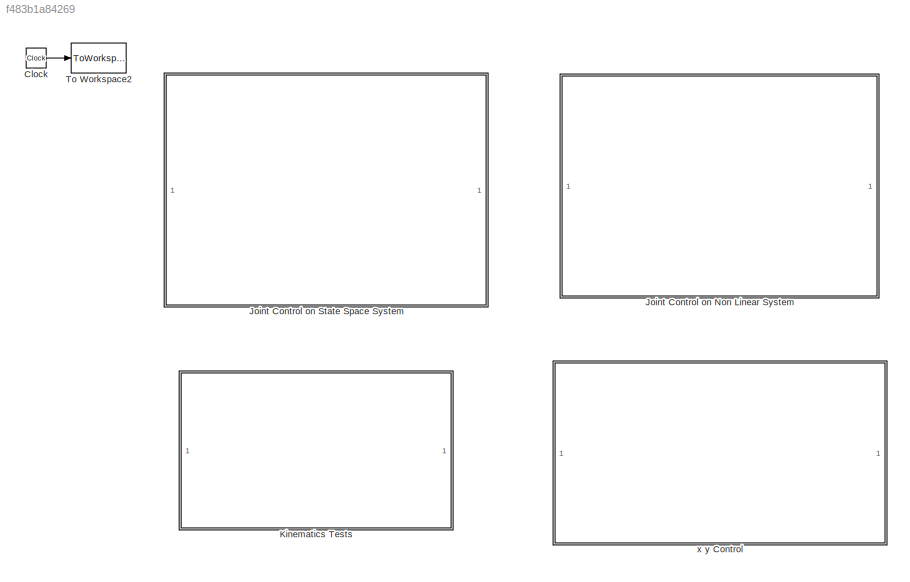
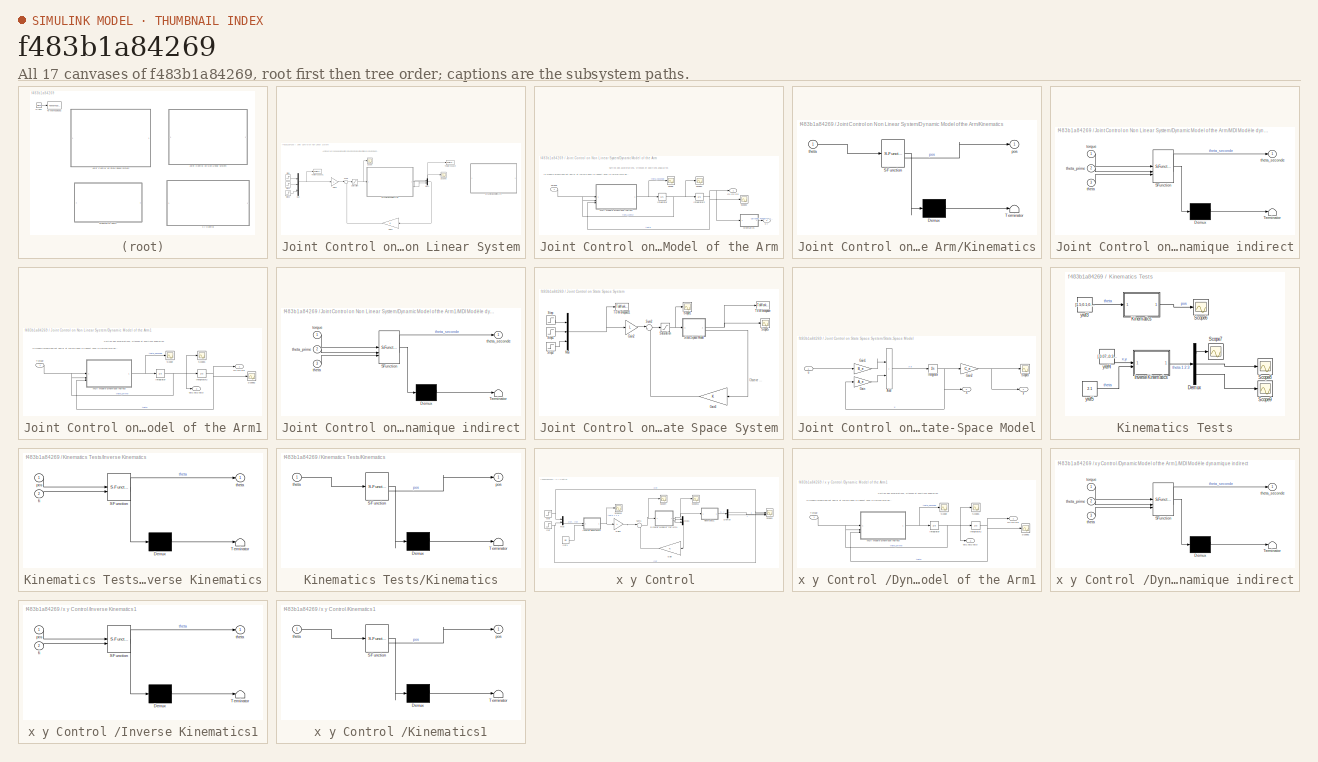
[diagram: thumbnail index - all 17 canvases of the model, root first then tree order]
MODEL slx_f483b1a84269
KIND model
CONFIG AbsTol = auto
CONFIG EnableMultiTasking = off
CONFIG FixedStep = 1e-5
CONFIG MaxStep = auto
CONFIG MinStep = auto
CONFIG RelTol = 1e-3
CONFIG SampleTimeConstraint = Unconstrained
CONFIG SolverName = VariableStepAuto
CONFIG StartTime = 0.0
CONFIG StopTime = 10
BLOCK [Clock] Clock
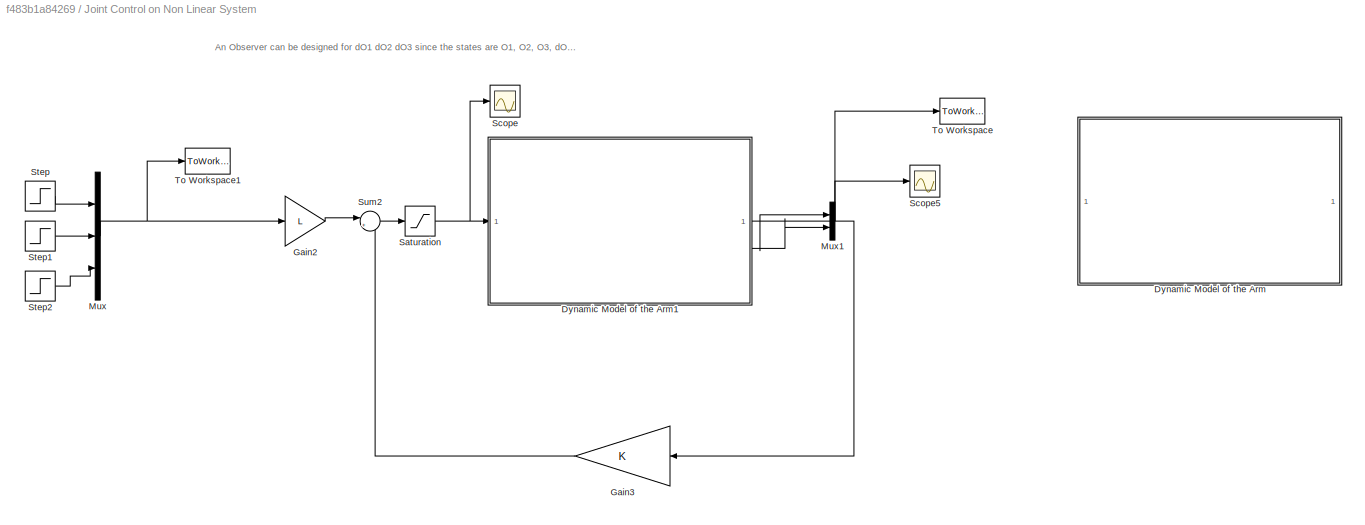
BLOCK [SubSystem] Joint Control on Non Linear System
BLOCK [SubSystem] Joint Control on Non Linear System/Dynamic Model of the Arm
  Commented = on
BLOCK [Integrator] Joint Control on Non Linear System/Dynamic Model of the Arm/Integrator
  InitialCondition = zeros(3,1)
BLOCK [Integrator] Joint Control on Non Linear System/Dynamic Model of the Arm/Integrator2
  InitialCondition = zeros(3,1)
BLOCK [SubSystem] Joint Control on Non Linear System/Dynamic Model of the Arm/Kinematics
  ErrorFcn = Stateflow.Translate.translate
  LibrarySourceBlock = simulink/User-Defined\nFunctions/MATLAB Function
  PermitHierarchicalResolution = ExplicitOnly
  SFBlockType = MATLAB Function
  TreatAsAtomicUnit = on
BLOCK [Demux] Joint Control on Non Linear System/Dynamic Model of the Arm/Kinematics/ Demux 
  Outputs = 1
BLOCK [S-Function] Joint Control on Non Linear System/Dynamic Model of the Arm/Kinematics/ SFunction 
  EnableBusSupport = on
  FunctionName = sf_sfun
  PortCounts = [1 2]
  SFcnIsStateOwnerBlock = off
  SFunctionDeploymentMode = off
  Tag = Stateflow S-Function 2
BLOCK [Terminator] Joint Control on Non Linear System/Dynamic Model of the Arm/Kinematics/ Terminator 
BLOCK [Outport] Joint Control on Non Linear System/Dynamic Model of the Arm/Kinematics/pos
BLOCK [Inport] Joint Control on Non Linear System/Dynamic Model of the Arm/Kinematics/theta
BLOCK [SubSystem] Joint Control on Non Linear System/Dynamic Model of the Arm/MDI Modèle dynamique indirect
  ErrorFcn = Stateflow.Translate.translate
  PermitHierarchicalResolution = ExplicitOnly
  SFBlockType = MATLAB Function
  TreatAsAtomicUnit = on
BLOCK [Demux] Joint Control on Non Linear System/Dynamic Model of the Arm/MDI Modèle dynamique indirect/ Demux 
  Outputs = 1
BLOCK [S-Function] Joint Control on Non Linear System/Dynamic Model of the Arm/MDI Modèle dynamique indirect/ SFunction 
  EnableBusSupport = on
  FunctionName = sf_sfun
  PortCounts = [3 2]
  SFcnIsStateOwnerBlock = off
  SFunctionDeploymentMode = off
  Tag = Stateflow S-Function 1
BLOCK [Terminator] Joint Control on Non Linear System/Dynamic Model of the Arm/MDI Modèle dynamique indirect/ Terminator 
BLOCK [Inport] Joint Control on Non Linear System/Dynamic Model of the Arm/MDI Modèle dynamique indirect/theta
  Port = 3
BLOCK [Inport] Joint Control on Non Linear System/Dynamic Model of the Arm/MDI Modèle dynamique indirect/theta_prime
  Port = 2
BLOCK [Outport] Joint Control on Non Linear System/Dynamic Model of the Arm/MDI Modèle dynamique indirect/theta_seconde
BLOCK [Inport] Joint Control on Non Linear System/Dynamic Model of the Arm/MDI Modèle dynamique indirect/torque
BLOCK [Outport] Joint Control on Non Linear System/Dynamic Model of the Arm/O1 O2 O3
BLOCK [Scope] Joint Control on Non Linear System/Dynamic Model of the Arm/Scope
  Floating = off
  NumInputPorts = 1
  ScopeSpecificationString = Simulink.scopes.TimeScopeBlockCfg('CurrentConfiguration', extmgr.ConfigurationSet(extmgr.Configuration('Core','General UI',true),extmgr.Configuration('Core','Source UI',true),extmgr.Configuration('Sources','WiredSimulink',true,'DataLoggingVariableName','ScopeData3'),extmgr.Configuration('Visuals','Time Domain',true,'SerializedDisplays',{struct('MinYLimReal','-0.00087','MaxYLimReal','0.00002','YLab...<+1410ch>  <repeated x3 — deduplicated; at blocks: Scope>
BLOCK [Scope] Joint Control on Non Linear System/Dynamic Model of the Arm/Scope1
  Floating = off
  NumInputPorts = 1
  ScopeSpecificationString = Simulink.scopes.TimeScopeBlockCfg('CurrentConfiguration', extmgr.ConfigurationSet(extmgr.Configuration('Core','General UI',true),extmgr.Configuration('Core','Source UI',true),extmgr.Configuration('Sources','WiredSimulink',true,'DataLoggingVariableName','ScopeData2'),extmgr.Configuration('Visuals','Time Domain',true,'SerializedDisplays',{struct('MinYLimReal','-0.01525','MaxYLimReal','0.00169','YLab...<+1404ch>  <repeated x3 — deduplicated; at blocks: Scope1>
BLOCK [Scope] Joint Control on Non Linear System/Dynamic Model of the Arm/Scope2
  Floating = off
  NumInputPorts = 1
  ScopeSpecificationString = Simulink.scopes.TimeScopeBlockCfg('CurrentConfiguration', extmgr.ConfigurationSet(extmgr.Configuration('Core','General UI',true),extmgr.Configuration('Core','Source UI',true),extmgr.Configuration('Sources','WiredSimulink',true),extmgr.Configuration('Visuals','Time Domain',true,'SerializedDisplays',{struct('MinYLimReal','-35.12122','MaxYLimReal','25.8041','YLabelReal','','MinYLimMag','0.00000','Max...<+1376ch>  <repeated x3 — deduplicated; at blocks: Scope2>
BLOCK [Inport] Joint Control on Non Linear System/Dynamic Model of the Arm/Torque
BLOCK [Outport] Joint Control on Non Linear System/Dynamic Model of the Arm/x y
  Port = 2
BLOCK [SubSystem] Joint Control on Non Linear System/Dynamic Model of the Arm1
BLOCK [Integrator] Joint Control on Non Linear System/Dynamic Model of the Arm1/Integrator
  InitialCondition = zeros(3,1)
BLOCK [Integrator] Joint Control on Non Linear System/Dynamic Model of the Arm1/Integrator2
  InitialCondition = zeros(3,1)
BLOCK [SubSystem] Joint Control on Non Linear System/Dynamic Model of the Arm1/MDI Modèle dynamique indirect
  ErrorFcn = Stateflow.Translate.translate
  PermitHierarchicalResolution = ExplicitOnly
  SFBlockType = MATLAB Function
  TreatAsAtomicUnit = on
BLOCK [Demux] Joint Control on Non Linear System/Dynamic Model of the Arm1/MDI Modèle dynamique indirect/ Demux 
  Outputs = 1
BLOCK [S-Function] Joint Control on Non Linear System/Dynamic Model of the Arm1/MDI Modèle dynamique indirect/ SFunction 
  EnableBusSupport = on
  FunctionName = sf_sfun
  PortCounts = [3 2]
  SFcnIsStateOwnerBlock = off
  SFunctionDeploymentMode = off
  Tag = Stateflow S-Function 5
BLOCK [Terminator] Joint Control on Non Linear System/Dynamic Model of the Arm1/MDI Modèle dynamique indirect/ Terminator 
BLOCK [Inport] Joint Control on Non Linear System/Dynamic Model of the Arm1/MDI Modèle dynamique indirect/theta
  Port = 3
BLOCK [Inport] Joint Control on Non Linear System/Dynamic Model of the Arm1/MDI Modèle dynamique indirect/theta_prime
  Port = 2
BLOCK [Outport] Joint Control on Non Linear System/Dynamic Model of the Arm1/MDI Modèle dynamique indirect/theta_seconde
BLOCK [Inport] Joint Control on Non Linear System/Dynamic Model of the Arm1/MDI Modèle dynamique indirect/torque
BLOCK [Outport] Joint Control on Non Linear System/Dynamic Model of the Arm1/O1 O2 O3
BLOCK [Scope] Joint Control on Non Linear System/Dynamic Model of the Arm1/Scope
  Floating = off
  NumInputPorts = 1
BLOCK [Scope] Joint Control on Non Linear System/Dynamic Model of the Arm1/Scope1
  Floating = off
  NumInputPorts = 1
BLOCK [Scope] Joint Control on Non Linear System/Dynamic Model of the Arm1/Scope2
  Floating = off
  NumInputPorts = 1
BLOCK [Inport] Joint Control on Non Linear System/Dynamic Model of the Arm1/Torque
BLOCK [Outport] Joint Control on Non Linear System/Dynamic Model of the Arm1/dO1 dO2 dO3
  Port = 2
BLOCK [Gain] Joint Control on Non Linear System/Gain2
  Gain = L
  Multiplication = Matrix(K*u)
BLOCK [Gain] Joint Control on Non Linear System/Gain3
  Gain = K
  Multiplication = Matrix(K*u)
BLOCK [Mux] Joint Control on Non Linear System/Mux
  DisplayOption = bar
  Inputs = 3
BLOCK [Mux] Joint Control on Non Linear System/Mux1
  DisplayOption = bar
  Inputs = 2
BLOCK [Saturate] Joint Control on Non Linear System/Saturation
  LowerLimit = 0
  UpperLimit = 3
BLOCK [Scope] Joint Control on Non Linear System/Scope
  Floating = off
  NumInputPorts = 1
  ScopeSpecificationString = Simulink.scopes.TimeScopeBlockCfg('CurrentConfiguration', extmgr.ConfigurationSet(extmgr.Configuration('Core','General UI',true),extmgr.Configuration('Core','Source UI',true),extmgr.Configuration('Sources','WiredSimulink',true,'DataLoggingVariableName','ScopeData1'),extmgr.Configuration('Visuals','Time Domain',true,'SerializedDisplays',{struct('MinYLimReal','-0.375','MaxYLimReal','3.375','YLabelRe...<+1443ch>
BLOCK [Scope] Joint Control on Non Linear System/Scope5
  Floating = off
  NumInputPorts = 1
  ScopeSpecificationString = Simulink.scopes.TimeScopeBlockCfg('CurrentConfiguration', extmgr.ConfigurationSet(extmgr.Configuration('Core','General UI',true),extmgr.Configuration('Core','Source UI',true),extmgr.Configuration('Sources','WiredSimulink',true,'DataLoggingVariableName','ScopeData1'),extmgr.Configuration('Visuals','Time Domain',true,'SerializedDisplays',{struct('MinYLimReal','-0.06417','MaxYLimReal','0.56211','YLab...<+1537ch>
BLOCK [Step] Joint Control on Non Linear System/Step
  After = 0.2
  SampleTime = 0
  Time = 0
BLOCK [Step] Joint Control on Non Linear System/Step1
  After = 0
  SampleTime = 0
  Time = 0
BLOCK [Step] Joint Control on Non Linear System/Step2
  After = 0.5
  SampleTime = 0
  Time = 0
BLOCK [Sum] Joint Control on Non Linear System/Sum2
  Inputs = |+-
BLOCK [ToWorkspace] Joint Control on Non Linear System/To Workspace
  FixptAsFi = on
  MaxDataPoints = inf
  SampleTime = -1
  VariableName = q
BLOCK [ToWorkspace] Joint Control on Non Linear System/To Workspace1
  FixptAsFi = on
  MaxDataPoints = inf
  SampleTime = -1
  VariableName = q_ref
BLOCK [SubSystem] Joint Control on State Space System
BLOCK [Gain] Joint Control on State Space System/Gain2
  Gain = L
  Multiplication = Matrix(K*u)
BLOCK [Gain] Joint Control on State Space System/Gain3
  Gain = K
  Multiplication = Matrix(K*u)
BLOCK [Mux] Joint Control on State Space System/Mux
  DisplayOption = bar
  Inputs = 3
BLOCK [Saturate] Joint Control on State Space System/Saturation
  LowerLimit = -0.01
  UpperLimit = 3
  ZeroCross = off
BLOCK [Scope] Joint Control on State Space System/Scope1
  Floating = off
  NumInputPorts = 1
  ScopeSpecificationString = Simulink.scopes.TimeScopeBlockCfg('CurrentConfiguration', extmgr.ConfigurationSet(extmgr.Configuration('Core','General UI',true),extmgr.Configuration('Core','Source UI',true),extmgr.Configuration('Sources','WiredSimulink',true,'DataLoggingVariableName','ScopeData2'),extmgr.Configuration('Visuals','Time Domain',true,'SerializedDisplays',{struct('MinYLimReal','-0.38625','MaxYLimReal','3.37625','YLab...<+1474ch>
BLOCK [Scope] Joint Control on State Space System/Scope5
  Floating = off
  NumInputPorts = 1
  ScopeSpecificationString = Simulink.scopes.TimeScopeBlockCfg('CurrentConfiguration', extmgr.ConfigurationSet(extmgr.Configuration('Core','General UI',true),extmgr.Configuration('Core','Source UI',true),extmgr.Configuration('Sources','WiredSimulink',true,'DataLoggingVariableName','ScopeData1'),extmgr.Configuration('Visuals','Time Domain',true,'SerializedDisplays',{struct('MinYLimReal','-0.06252','MaxYLimReal','0.56247','YLab...<+1482ch>
BLOCK [SubSystem] Joint Control on State Space System/State-Space Model
BLOCK [Sum] Joint Control on State Space System/State-Space Model/Add
  IconShape = rectangular
BLOCK [Gain] Joint Control on State Space System/State-Space Model/Gain
  Gain = A_e
  Multiplication = Matrix(K*u)
BLOCK [Gain] Joint Control on State Space System/State-Space Model/Gain1
  Gain = B_e
  Multiplication = Matrix(K*u)
BLOCK [Gain] Joint Control on State Space System/State-Space Model/Gain2
  Gain = C_e
  Multiplication = Matrix(K*u)
BLOCK [Integrator] Joint Control on State Space System/State-Space Model/Integrator
BLOCK [Scope] Joint Control on State Space System/State-Space Model/Scope3
  Floating = off
  NumInputPorts = 1
  ScopeSpecificationString = Simulink.scopes.TimeScopeBlockCfg('CurrentConfiguration', extmgr.ConfigurationSet(extmgr.Configuration('Core','General UI',true),extmgr.Configuration('Core','Source UI',true),extmgr.Configuration('Sources','WiredSimulink',true,'DataLoggingVariableName','ScopeData1'),extmgr.Configuration('Visuals','Time Domain',true),extmgr.Configuration('Tools','Plot Navigation',true),extmgr.Configuration('Tools',...<+40ch>
BLOCK [Outport] Joint Control on State Space System/State-Space Model/X
  Port = 2
BLOCK [Inport] Joint Control on State Space System/State-Space Model/u
BLOCK [Outport] Joint Control on State Space System/State-Space Model/y
BLOCK [Step] Joint Control on State Space System/Step
  After = 0.2
  SampleTime = 0
  Time = 0
BLOCK [Step] Joint Control on State Space System/Step1
  After = 0
  SampleTime = 0
  Time = 0
BLOCK [Step] Joint Control on State Space System/Step2
  After = 0.5
  SampleTime = 0
  Time = 0
BLOCK [Sum] Joint Control on State Space System/Sum2
  Inputs = |+-
BLOCK [ToWorkspace] Joint Control on State Space System/To Workspace
  FixptAsFi = on
  MaxDataPoints = inf
  SampleTime = -1
  VariableName = q_ss
BLOCK [ToWorkspace] Joint Control on State Space System/To Workspace1
  FixptAsFi = on
  MaxDataPoints = inf
  SampleTime = -1
  VariableName = qref
BLOCK [SubSystem] Kinematics Tests
  Commented = on
BLOCK [Demux] Kinematics Tests/Demux
  Commented = on
  Outputs = 3
BLOCK [SubSystem] Kinematics Tests/Inverse Kinematics
  Commented = on
  ErrorFcn = Stateflow.Translate.translate
  LibrarySourceBlock = simulink/User-Defined\nFunctions/MATLAB Function
  PermitHierarchicalResolution = ExplicitOnly
  SFBlockType = MATLAB Function
  TreatAsAtomicUnit = on
BLOCK [Demux] Kinematics Tests/Inverse Kinematics/ Demux 
  Outputs = 1
BLOCK [S-Function] Kinematics Tests/Inverse Kinematics/ SFunction 
  EnableBusSupport = on
  FunctionName = sf_sfun
  PortCounts = [2 2]
  SFcnIsStateOwnerBlock = off
  SFunctionDeploymentMode = off
  Tag = Stateflow S-Function 7
BLOCK [Terminator] Kinematics Tests/Inverse Kinematics/ Terminator 
BLOCK [Inport] Kinematics Tests/Inverse Kinematics/fi
  Port = 2
BLOCK [Inport] Kinematics Tests/Inverse Kinematics/pos
BLOCK [Outport] Kinematics Tests/Inverse Kinematics/theta
BLOCK [SubSystem] Kinematics Tests/Kinematics
  Commented = on
  ErrorFcn = Stateflow.Translate.translate
  LibrarySourceBlock = simulink/User-Defined\nFunctions/MATLAB Function
  PermitHierarchicalResolution = ExplicitOnly
  SFBlockType = MATLAB Function
  TreatAsAtomicUnit = on
BLOCK [Demux] Kinematics Tests/Kinematics/ Demux 
  Outputs = 1
BLOCK [S-Function] Kinematics Tests/Kinematics/ SFunction 
  EnableBusSupport = on
  FunctionName = sf_sfun
  PortCounts = [1 2]
  SFcnIsStateOwnerBlock = off
  SFunctionDeploymentMode = off
  Tag = Stateflow S-Function 6
BLOCK [Terminator] Kinematics Tests/Kinematics/ Terminator 
BLOCK [Outport] Kinematics Tests/Kinematics/pos
BLOCK [Inport] Kinematics Tests/Kinematics/theta
BLOCK [Scope] Kinematics Tests/Scope6
  Commented = on
  Floating = off
  NumInputPorts = 1
  ScopeSpecificationString = Simulink.scopes.TimeScopeBlockCfg('CurrentConfiguration', extmgr.ConfigurationSet(extmgr.Configuration('Core','General UI',true),extmgr.Configuration('Core','Source UI',true),extmgr.Configuration('Sources','WiredSimulink',true,'DataLoggingVariableName','ScopeData1'),extmgr.Configuration('Visuals','Time Domain',true,'SerializedDisplays',{struct('MinYLimReal','-0.12411','MaxYLimReal','0.43562','YLab...<+1426ch>
BLOCK [Scope] Kinematics Tests/Scope7
  Commented = on
  Floating = off
  NumInputPorts = 1
  ScopeSpecificationString = Simulink.scopes.TimeScopeBlockCfg('CurrentConfiguration', extmgr.ConfigurationSet(extmgr.Configuration('Core','General UI',true),extmgr.Configuration('Core','Source UI',true),extmgr.Configuration('Sources','WiredSimulink',true,'DataLoggingVariableName','ScopeData2'),extmgr.Configuration('Visuals','Time Domain',true,'SerializedDisplays',{struct('MinYLimReal','-1.01997','MaxYLimReal','-0.81997','YLa...<+1422ch>
BLOCK [Scope] Kinematics Tests/Scope8
  Commented = on
  Floating = off
  NumInputPorts = 1
  ScopeSpecificationString = Simulink.scopes.TimeScopeBlockCfg('CurrentConfiguration', extmgr.ConfigurationSet(extmgr.Configuration('Core','General UI',true),extmgr.Configuration('Core','Source UI',true),extmgr.Configuration('Sources','WiredSimulink',true,'DataLoggingVariableName','ScopeData3'),extmgr.Configuration('Visuals','Time Domain',true,'SerializedDisplays',{struct('MinYLimReal','0.37839','MaxYLimReal','2.37839','YLabe...<+1418ch>
BLOCK [Scope] Kinematics Tests/Scope9
  Commented = on
  Floating = off
  NumInputPorts = 1
  ScopeSpecificationString = Simulink.scopes.TimeScopeBlockCfg('CurrentConfiguration', extmgr.ConfigurationSet(extmgr.Configuration('Core','General UI',true),extmgr.Configuration('Core','Source UI',true),extmgr.Configuration('Sources','WiredSimulink',true,'DataLoggingVariableName','ScopeData4'),extmgr.Configuration('Visuals','Time Domain',true,'SerializedDisplays',{struct('MinYLimReal','0.64158','MaxYLimReal','2.64158','YLabe...<+1418ch>
BLOCK [Constant] Kinematics Tests/yref3
  Commented = on
  Value = [1.5;0.1;0.5]
BLOCK [Constant] Kinematics Tests/yref4
  Commented = on
  Value = [-0.07;-0.37]
BLOCK [Constant] Kinematics Tests/yref5
  Commented = on
  Value = 2.1
BLOCK [ToWorkspace] To Workspace2
  FixptAsFi = on
  MaxDataPoints = inf
  SampleTime = -1
  VariableName = t
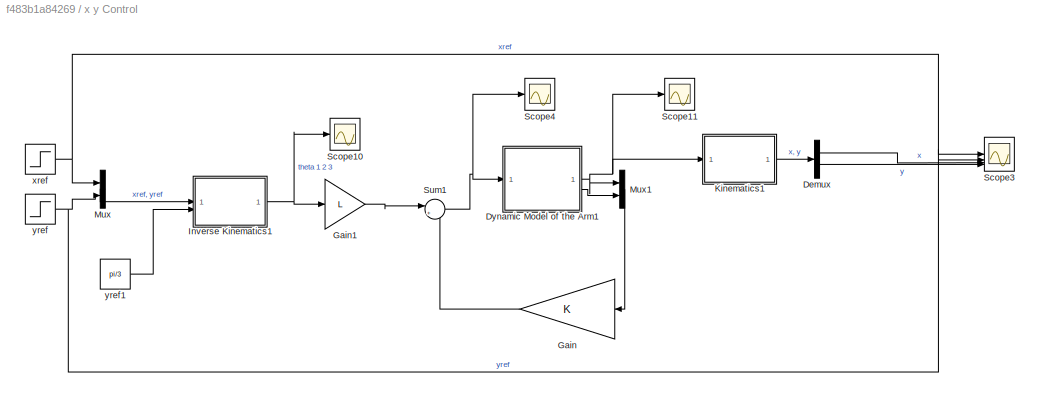
BLOCK [SubSystem] x y Control 
BLOCK [Demux] x y Control /Demux
  Outputs = 2
BLOCK [SubSystem] x y Control /Dynamic Model of the Arm1
BLOCK [Integrator] x y Control /Dynamic Model of the Arm1/Integrator
  InitialCondition = zeros(3,1)
BLOCK [Integrator] x y Control /Dynamic Model of the Arm1/Integrator2
  InitialCondition = zeros(3,1)
BLOCK [SubSystem] x y Control /Dynamic Model of the Arm1/MDI Modèle dynamique indirect
  ErrorFcn = Stateflow.Translate.translate
  PermitHierarchicalResolution = ExplicitOnly
  SFBlockType = MATLAB Function
  TreatAsAtomicUnit = on
BLOCK [Demux] x y Control /Dynamic Model of the Arm1/MDI Modèle dynamique indirect/ Demux 
  Outputs = 1
BLOCK [S-Function] x y Control /Dynamic Model of the Arm1/MDI Modèle dynamique indirect/ SFunction 
  EnableBusSupport = on
  FunctionName = sf_sfun
  PortCounts = [3 2]
  SFcnIsStateOwnerBlock = off
  SFunctionDeploymentMode = off
  Tag = Stateflow S-Function 3
BLOCK [Terminator] x y Control /Dynamic Model of the Arm1/MDI Modèle dynamique indirect/ Terminator 
BLOCK [Inport] x y Control /Dynamic Model of the Arm1/MDI Modèle dynamique indirect/theta
  Port = 3
BLOCK [Inport] x y Control /Dynamic Model of the Arm1/MDI Modèle dynamique indirect/theta_prime
  Port = 2
BLOCK [Outport] x y Control /Dynamic Model of the Arm1/MDI Modèle dynamique indirect/theta_seconde
BLOCK [Inport] x y Control /Dynamic Model of the Arm1/MDI Modèle dynamique indirect/torque
BLOCK [Outport] x y Control /Dynamic Model of the Arm1/O1 O2 O3
BLOCK [Scope] x y Control /Dynamic Model of the Arm1/Scope
  Floating = off
  NumInputPorts = 1
BLOCK [Scope] x y Control /Dynamic Model of the Arm1/Scope1
  Floating = off
  NumInputPorts = 1
BLOCK [Scope] x y Control /Dynamic Model of the Arm1/Scope2
  Floating = off
  NumInputPorts = 1
BLOCK [Inport] x y Control /Dynamic Model of the Arm1/Torque
BLOCK [Outport] x y Control /Dynamic Model of the Arm1/dO1 dO2 dO3
  Port = 2
BLOCK [Gain] x y Control /Gain
  Gain = K
  Multiplication = Matrix(K*u)
BLOCK [Gain] x y Control /Gain1
  Gain = L
  Multiplication = Matrix(K*u)
BLOCK [SubSystem] x y Control /Inverse Kinematics1
  ErrorFcn = Stateflow.Translate.translate
  LibrarySourceBlock = simulink/User-Defined\nFunctions/MATLAB Function
  PermitHierarchicalResolution = ExplicitOnly
  SFBlockType = MATLAB Function
  TreatAsAtomicUnit = on
BLOCK [Demux] x y Control /Inverse Kinematics1/ Demux 
  Outputs = 1
BLOCK [S-Function] x y Control /Inverse Kinematics1/ SFunction 
  EnableBusSupport = on
  FunctionName = sf_sfun
  PortCounts = [2 2]
  SFcnIsStateOwnerBlock = off
  SFunctionDeploymentMode = off
  Tag = Stateflow S-Function 9
BLOCK [Terminator] x y Control /Inverse Kinematics1/ Terminator 
BLOCK [Inport] x y Control /Inverse Kinematics1/fi
  Port = 2
BLOCK [Inport] x y Control /Inverse Kinematics1/pos
BLOCK [Outport] x y Control /Inverse Kinematics1/theta
BLOCK [SubSystem] x y Control /Kinematics1
  ErrorFcn = Stateflow.Translate.translate
  LibrarySourceBlock = simulink/User-Defined\nFunctions/MATLAB Function
  PermitHierarchicalResolution = ExplicitOnly
  SFBlockType = MATLAB Function
  TreatAsAtomicUnit = on
BLOCK [Demux] x y Control /Kinematics1/ Demux 
  Outputs = 1
BLOCK [S-Function] x y Control /Kinematics1/ SFunction 
  EnableBusSupport = on
  FunctionName = sf_sfun
  PortCounts = [1 2]
  SFcnIsStateOwnerBlock = off
  SFunctionDeploymentMode = off
  Tag = Stateflow S-Function 8
BLOCK [Terminator] x y Control /Kinematics1/ Terminator 
BLOCK [Outport] x y Control /Kinematics1/pos
BLOCK [Inport] x y Control /Kinematics1/theta
BLOCK [Mux] x y Control /Mux
  DisplayOption = bar
  Inputs = 2
BLOCK [Mux] x y Control /Mux1
  DisplayOption = bar
  Inputs = 2
BLOCK [Scope] x y Control /Scope10
  Floating = off
  NumInputPorts = 1
  ScopeSpecificationString = Simulink.scopes.TimeScopeBlockCfg('CurrentConfiguration', extmgr.ConfigurationSet(extmgr.Configuration('Core','General UI',true),extmgr.Configuration('Core','Source UI',true),extmgr.Configuration('Sources','WiredSimulink',true,'DataLoggingVariableName','ScopeData5'),extmgr.Configuration('Visuals','Time Domain',true,'SerializedDisplays',{struct('MinYLimReal','-2.00514','MaxYLimReal','3.01844','YLab...<+1477ch>
BLOCK [Scope] x y Control /Scope11
  Floating = off
  NumInputPorts = 1
  ScopeSpecificationString = Simulink.scopes.TimeScopeBlockCfg('CurrentConfiguration', extmgr.ConfigurationSet(extmgr.Configuration('Core','General UI',true),extmgr.Configuration('Core','Source UI',true),extmgr.Configuration('Sources','WiredSimulink',true,'DataLoggingVariableName','ScopeData6'),extmgr.Configuration('Visuals','Time Domain',true,'SerializedDisplays',{struct('MinYLimReal','-1.82912','MaxYLimReal','2.96663','YLab...<+1459ch>
BLOCK [Scope] x y Control /Scope3
  Floating = off
  NumInputPorts = 4
  ScopeSpecificationString = Simulink.scopes.TimeScopeBlockCfg('CurrentConfiguration', extmgr.ConfigurationSet(extmgr.Configuration('Core','General UI',true),extmgr.Configuration('Core','Source UI',true),extmgr.Configuration('Sources','WiredSimulink',true,'DataLoggingVariableName','ScopeData3'),extmgr.Configuration('Visuals','Time Domain',true,'SerializedDisplays',{struct('MinYLimReal','-0.05','MaxYLimReal','0.45','YLabelReal...<+1442ch>
BLOCK [Scope] x y Control /Scope4
  Floating = off
  NumInputPorts = 1
  ScopeSpecificationString = Simulink.scopes.TimeScopeBlockCfg('CurrentConfiguration', extmgr.ConfigurationSet(extmgr.Configuration('Core','General UI',true),extmgr.Configuration('Core','Source UI',true),extmgr.Configuration('Sources','WiredSimulink',true,'DataLoggingVariableName','ScopeData4'),extmgr.Configuration('Visuals','Time Domain',true,'SerializedDisplays',{struct('MinYLimReal','-0.65774','MaxYLimReal','0.92784','YLab...<+1456ch>
BLOCK [Sum] x y Control /Sum1
  Inputs = |+-
BLOCK [Step] x y Control /xref
  After = 0.1
  SampleTime = 0
  Time = 0
BLOCK [Step] x y Control /yref
  After = 0.2
  SampleTime = 0
  Time = 0
BLOCK [Constant] x y Control /yref1
  Value = pi/3
ANNOTATION Joint Control on Non Linear System: An Observer can be designed for dO1 dO2 dO3 since the states are O1, O2, O3, dO1, dO2, dO3.
ANNOTATION Joint Control on Non Linear System/Dynamic Model of the Arm: Sorties des accélérations, vitesses et positions angulaires
ANNOTATION Joint Control on Non Linear System/Dynamic Model of the Arm: le modèle dynamique est défini et calculé dans le rapport avec le formalisme de Lagrange
ANNOTATION Joint Control on Non Linear System/Dynamic Model of the Arm1: Sorties des accélérations, vitesses et positions angulaires
ANNOTATION Joint Control on Non Linear System/Dynamic Model of the Arm1: le modèle dynamique est défini et calculé dans le rapport avec le formalisme de Lagrange
ANNOTATION Joint Control on State Space System: Observer ...
ANNOTATION x y Control /Dynamic Model of the Arm1: Sorties des accélérations, vitesses et positions angulaires
ANNOTATION x y Control /Dynamic Model of the Arm1: le modèle dynamique est défini et calculé dans le rapport avec le formalisme de Lagrange
LINE Clock:1 -> To Workspace2:1
NET Joint Control on Non Linear System/Dynamic Model of the Arm/Integrator2:1 -> Joint Control on Non Linear System/Dynamic Model of the Arm/Kinematics:1, Joint Control on Non Linear System/Dynamic Model of the Arm/MDI Modèle dynamique indirect:3, Joint Control on Non Linear System/Dynamic Model of the Arm/O1 O2 O3:1, Joint Control on Non Linear System/Dynamic Model of the Arm/Scope2:1
NET Joint Control on Non Linear System/Dynamic Model of the Arm/Integrator:1 -> Joint Control on Non Linear System/Dynamic Model of the Arm/Integrator2:1, Joint Control on Non Linear System/Dynamic Model of the Arm/MDI Modèle dynamique indirect:2, Joint Control on Non Linear System/Dynamic Model of the Arm/Scope1:1
LINE Joint Control on Non Linear System/Dynamic Model of the Arm/Kinematics:1 -> Joint Control on Non Linear System/Dynamic Model of the Arm/x y:1
NET Joint Control on Non Linear System/Dynamic Model of the Arm/MDI Modèle dynamique indirect:1 -> Joint Control on Non Linear System/Dynamic Model of the Arm/Integrator:1, Joint Control on Non Linear System/Dynamic Model of the Arm/Scope:1
LINE Joint Control on Non Linear System/Dynamic Model of the Arm/Torque:1 -> Joint Control on Non Linear System/Dynamic Model of the Arm/MDI Modèle dynamique indirect:1
NET Joint Control on Non Linear System/Dynamic Model of the Arm1/Integrator2:1 -> Joint Control on Non Linear System/Dynamic Model of the Arm1/MDI Modèle dynamique indirect:3, Joint Control on Non Linear System/Dynamic Model of the Arm1/O1 O2 O3:1, Joint Control on Non Linear System/Dynamic Model of the Arm1/Scope2:1
NET Joint Control on Non Linear System/Dynamic Model of the Arm1/Integrator:1 -> Joint Control on Non Linear System/Dynamic Model of the Arm1/Integrator2:1, Joint Control on Non Linear System/Dynamic Model of the Arm1/MDI Modèle dynamique indirect:2, Joint Control on Non Linear System/Dynamic Model of the Arm1/Scope1:1, Joint Control on Non Linear System/Dynamic Model of the Arm1/dO1 dO2 dO3:1
NET Joint Control on Non Linear System/Dynamic Model of the Arm1/MDI Modèle dynamique indirect:1 -> Joint Control on Non Linear System/Dynamic Model of the Arm1/Integrator:1, Joint Control on Non Linear System/Dynamic Model of the Arm1/Scope:1
LINE Joint Control on Non Linear System/Dynamic Model of the Arm1/Torque:1 -> Joint Control on Non Linear System/Dynamic Model of the Arm1/MDI Modèle dynamique indirect:1
NET Joint Control on Non Linear System/Dynamic Model of the Arm1:1 -> Joint Control on Non Linear System/Mux1:1, Joint Control on Non Linear System/Scope5:1, Joint Control on Non Linear System/To Workspace:1
LINE Joint Control on Non Linear System/Dynamic Model of the Arm1:2 -> Joint Control on Non Linear System/Mux1:2
LINE Joint Control on Non Linear System/Gain2:1 -> Joint Control on Non Linear System/Sum2:1
LINE Joint Control on Non Linear System/Gain3:1 -> Joint Control on Non Linear System/Sum2:2
LINE Joint Control on Non Linear System/Mux1:1 -> Joint Control on Non Linear System/Gain3:1
NET Joint Control on Non Linear System/Mux:1 -> Joint Control on Non Linear System/Gain2:1, Joint Control on Non Linear System/To Workspace1:1
NET Joint Control on Non Linear System/Saturation:1 -> Joint Control on Non Linear System/Dynamic Model of the Arm1:1, Joint Control on Non Linear System/Scope:1
LINE Joint Control on Non Linear System/Step1:1 -> Joint Control on Non Linear System/Mux:2
LINE Joint Control on Non Linear System/Step2:1 -> Joint Control on Non Linear System/Mux:3
LINE Joint Control on Non Linear System/Step:1 -> Joint Control on Non Linear System/Mux:1
LINE Joint Control on Non Linear System/Sum2:1 -> Joint Control on Non Linear System/Saturation:1
LINE Joint Control on State Space System/Gain2:1 -> Joint Control on State Space System/Sum2:1
LINE Joint Control on State Space System/Gain3:1 -> Joint Control on State Space System/Sum2:2
NET Joint Control on State Space System/Mux:1 -> Joint Control on State Space System/Gain2:1, Joint Control on State Space System/To Workspace1:1
NET Joint Control on State Space System/Saturation:1 -> Joint Control on State Space System/Scope1:1, Joint Control on State Space System/State-Space Model:1
LINE Joint Control on State Space System/State-Space Model/Add:1 -> Joint Control on State Space System/State-Space Model/Integrator:1
LINE Joint Control on State Space System/State-Space Model/Gain1:1 -> Joint Control on State Space System/State-Space Model/Add:1
NET Joint Control on State Space System/State-Space Model/Gain2:1 -> Joint Control on State Space System/State-Space Model/Scope3:1, Joint Control on State Space System/State-Space Model/y:1
LINE Joint Control on State Space System/State-Space Model/Gain:1 -> Joint Control on State Space System/State-Space Model/Add:2
NET Joint Control on State Space System/State-Space Model/Integrator:1 -> Joint Control on State Space System/State-Space Model/Gain2:1, Joint Control on State Space System/State-Space Model/Gain:1, Joint Control on State Space System/State-Space Model/X:1
LINE Joint Control on State Space System/State-Space Model/u:1 -> Joint Control on State Space System/State-Space Model/Gain1:1
NET Joint Control on State Space System/State-Space Model:1 -> Joint Control on State Space System/Scope5:1, Joint Control on State Space System/To Workspace:1
LINE Joint Control on State Space System/State-Space Model:2 -> Joint Control on State Space System/Gain3:1
LINE Joint Control on State Space System/Step1:1 -> Joint Control on State Space System/Mux:2
LINE Joint Control on State Space System/Step2:1 -> Joint Control on State Space System/Mux:3
LINE Joint Control on State Space System/Step:1 -> Joint Control on State Space System/Mux:1
LINE Joint Control on State Space System/Sum2:1 -> Joint Control on State Space System/Saturation:1
LINE Kinematics Tests/Demux:1 -> Kinematics Tests/Scope7:1
LINE Kinematics Tests/Demux:2 -> Kinematics Tests/Scope8:1
LINE Kinematics Tests/Demux:3 -> Kinematics Tests/Scope9:1
LINE Kinematics Tests/Inverse Kinematics:1 -> Kinematics Tests/Demux:1
LINE Kinematics Tests/Kinematics:1 -> Kinematics Tests/Scope6:1
LINE Kinematics Tests/yref3:1 -> Kinematics Tests/Kinematics:1
LINE Kinematics Tests/yref4:1 -> Kinematics Tests/Inverse Kinematics:1
LINE Kinematics Tests/yref5:1 -> Kinematics Tests/Inverse Kinematics:2
LINE x y Control /Demux:1 -> x y Control /Scope3:3
LINE x y Control /Demux:2 -> x y Control /Scope3:4
NET x y Control /Dynamic Model of the Arm1/Integrator2:1 -> x y Control /Dynamic Model of the Arm1/MDI Modèle dynamique indirect:3, x y Control /Dynamic Model of the Arm1/O1 O2 O3:1, x y Control /Dynamic Model of the Arm1/Scope2:1
NET x y Control /Dynamic Model of the Arm1/Integrator:1 -> x y Control /Dynamic Model of the Arm1/Integrator2:1, x y Control /Dynamic Model of the Arm1/MDI Modèle dynamique indirect:2, x y Control /Dynamic Model of the Arm1/Scope1:1, x y Control /Dynamic Model of the Arm1/dO1 dO2 dO3:1
NET x y Control /Dynamic Model of the Arm1/MDI Modèle dynamique indirect:1 -> x y Control /Dynamic Model of the Arm1/Integrator:1, x y Control /Dynamic Model of the Arm1/Scope:1
LINE x y Control /Dynamic Model of the Arm1/Torque:1 -> x y Control /Dynamic Model of the Arm1/MDI Modèle dynamique indirect:1
NET x y Control /Dynamic Model of the Arm1:1 -> x y Control /Kinematics1:1, x y Control /Mux1:1, x y Control /Scope11:1
LINE x y Control /Dynamic Model of the Arm1:2 -> x y Control /Mux1:2
LINE x y Control /Gain1:1 -> x y Control /Sum1:1
LINE x y Control /Gain:1 -> x y Control /Sum1:2
NET x y Control /Inverse Kinematics1:1 -> x y Control /Gain1:1, x y Control /Scope10:1
LINE x y Control /Kinematics1:1 -> x y Control /Demux:1
LINE x y Control /Mux1:1 -> x y Control /Gain:1
LINE x y Control /Mux:1 -> x y Control /Inverse Kinematics1:1
NET x y Control /Sum1:1 -> x y Control /Dynamic Model of the Arm1:1, x y Control /Scope4:1
NET x y Control /xref:1 -> x y Control /Mux:1, x y Control /Scope3:1
LINE x y Control /yref1:1 -> x y Control /Inverse Kinematics1:2
NET x y Control /yref:1 -> x y Control /Mux:2, x y Control /Scope3:2
note: NET lines group one-source signal fan-out (src -> all destinations, sorted); 1:1 wires keep LINE
CHART Joint Control on Non Linear System/Dynamic Model of the Arm/Kinematics states=1 transitions=1
  STATE_LABEL 'eML_blk_kernel()'
  STATE_LABEL 'SCRIPT:\nfunction pos= fcn(theta)\n\n% Masses des membres\nm1 = 1.3850917e-01; % masse du membre inférieur\nm2 = 1.3274562e-01; % masse du membre secondaire\nm3 = 1.4327573e-01; % masse de la pince\n\n% Longueurs des membres\nl1 = 0.13; % longueur du membre inférieur\nl2 = 0.124; % longueur du membre secondaire\nl3 = 0.146; % longueur de la pince\n\ntheta1 = theta(1);\ntheta2 = theta(2);\ntheta3 = theta(3);\n\nx =...<+165ch>'  <repeated x3 — deduplicated; at blocks: Kinematics, Kinematics1>
CHART x y Control /Dynamic Model of the Arm1/MDI
Modèle dynamique indirect states=1 transitions=1
  STATE_LABEL 'eML_blk_kernel()'
  STATE_LABEL 'SCRIPT:\nfunction theta_seconde = mdi(torque, theta_prime, theta)\n\n% Fonction qui traduit le comportement dynamique du robot lors de son mouvement\n\n% Récupération des positions et vitesses angulaires du robot\ntp1 = theta_prime(1);\ntp2 = theta_prime(2);\ntp3 = theta_prime(3);\nt1 = theta(1);\nt2 = theta(2);\nt3 = theta(3);\n\ng = 9.81;\n\n%% Constantes du robot\n\n% Masses des membres\nm1 = 1.3850917e-01; % ma...<+2412ch>'
CHART Joint Control on Non Linear System/Dynamic Model of the Arm1/MDI
Modèle dynamique indirect states=1 transitions=1
  STATE_LABEL 'eML_blk_kernel()'
  STATE_LABEL 'SCRIPT:\nfunction theta_seconde = mdi(torque, theta_prime, theta)\n\n% Fonction qui traduit le comportement dynamique du robot lors de son mouvement\n\n% Récupération des positions et vitesses angulaires du robot\ntp1 = theta_prime(1);\ntp2 = theta_prime(2);\ntp3 = theta_prime(3);\nt1 = theta(1);\nt2 = theta(2);\nt3 = theta(3);\n\ng = 9.81;\n\n%% Constantes du robot\n\n% Masses des membres\nm1 = 1.3850917e-01; % ma...<+2412ch>'
CHART Kinematics Tests/Kinematics states=1 transitions=1
  STATE_LABEL 'eML_blk_kernel()'
CHART Kinematics Tests/Inverse Kinematics states=1 transitions=1
  STATE_LABEL 'eML_blk_kernel()'
  STATE_LABEL 'SCRIPT:\nfunction theta= fcn(pos, fi)\n\n% Masses des membres\nm1 = 1.3850917e-01; % masse du membre inférieur\nm2 = 1.3274562e-01; % masse du membre secondaire\nm3 = 1.4327573e-01; % masse de la pince\n\n% Longueurs des membres\nl1 = 0.13; % longueur du membre inférieur\nl2 = 0.124; % longueur du membre secondaire\nl3 = 0.146; % longueur de la pince\n\nx = pos(1);\ny = pos(2);\n\n\nxB = x - l3*cos(fi);\nyB = x - l...<+207ch>'
CHART x y Control /Kinematics1 states=1 transitions=1
  STATE_LABEL 'eML_blk_kernel()'
CHART x y Control /Inverse Kinematics1 states=1 transitions=1
  STATE_LABEL 'eML_blk_kernel()'
  STATE_LABEL 'SCRIPT:\nfunction theta= fcn(pos, fi)\n\n% Masses des membres\nm1 = 1.3850917e-01; % masse du membre inférieur\nm2 = 1.3274562e-01; % masse du membre secondaire\nm3 = 1.4327573e-01; % masse de la pince\n\n% Longueurs des membres\nl1 = 0.13; % longueur du membre inférieur\nl2 = 0.124; % longueur du membre secondaire\nl3 = 0.146; % longueur de la pince\n\nx = pos(1);\ny = pos(2);\n\n\nxB = x - l3*cos(fi);\nyB = y - l...<+207ch>'
CHART Joint Control on Non Linear System/Dynamic Model of the Arm/MDI
Modèle dynamique indirect states=1 transitions=1
  STATE_LABEL 'eML_blk_kernel()'
  STATE_LABEL 'SCRIPT:\nfunction theta_seconde = mdi(torque, theta_prime, theta)\n\n% Fonction qui traduit le comportement dynamique du robot lors de son mouvement\n\n% Récupération des positions et vitesses angulaires du robot\ntp1 = theta_prime(1);\ntp2 = theta_prime(2);\ntp3 = theta_prime(3);\nt1 = theta(1);\nt2 = theta(2);\nt3 = theta(3);\n\ng = 9.81;\n\n%% Constantes du robot\n\n% Masses des membres\nm1 = 1.3850917e-01; % ma...<+2437ch>'
CHART  states=0 transitions=0
CHART  states=0 transitions=0
CHART  states=0 transitions=0
CHART  states=0 transitions=0
CHART  states=0 transitions=0
CHART  states=0 transitions=0
CHART  states=0 transitions=0
CHART  states=0 transitions=0
